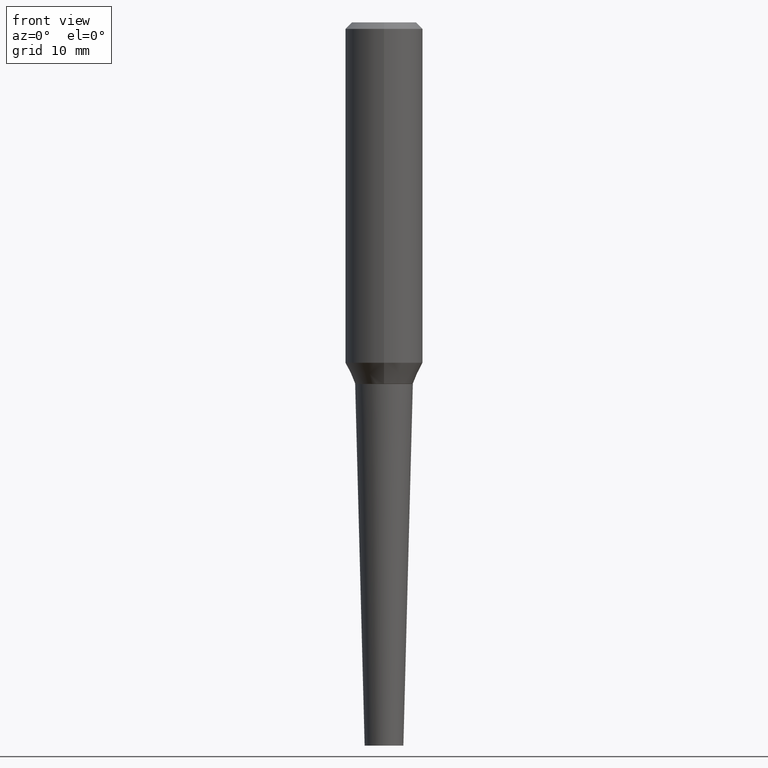
[diagram: clean part render]
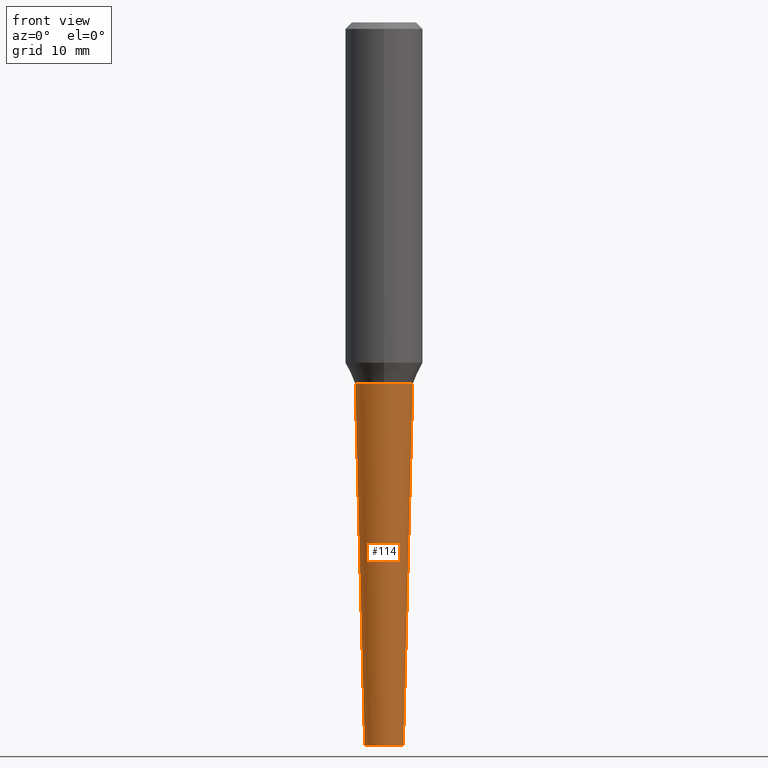
[diagram: same view with one face highlighted and labeled with its STEP entity id]
A machine part, front view. The second image highlights one B-rep face of the part: STEP entity #114.
In plain terms, the highlighted conical surface has half-angle 1.5 deg.
Its self-contained STEP definition (entity closure, byte-faithful):
#19 = CARTESIAN_POINT ( 'NONE',  ( -0.1395753627460647461, -5.118349742072530161E-15, -1.750000000000000000 ) ) ;
#25 = FACE_OUTER_BOUND ( 'NONE', #305, .T. ) ;
#33 = DIRECTION ( 'NONE',  ( 1.000000000000000000, -6.982962677686257244E-15, 0.000000000000000000 ) ) ;
#34 = VERTEX_POINT ( 'NONE', #19 ) ;
#38 = DIRECTION ( 'NONE',  ( 1.000000000000000000, -6.982962677686264344E-15, 0.000000000000000000 ) ) ;
#59 = CARTESIAN_POINT ( 'NONE',  ( 8.559140821647976968E-29, -1.222018468595100934E-14, -3.500000000000000000 ) ) ;
#72 = EDGE_CURVE ( 'NONE', #265, #108, #157, .T. ) ;
#73 = EDGE_CURVE ( 'NONE', #301, #265, #151, .T. ) ;
#74 = AXIS2_PLACEMENT_3D ( 'NONE', #59, #403, #244 ) ;
#77 = ORIENTED_EDGE ( 'NONE', *, *, #73, .T. ) ;
#80 = AXIS2_PLACEMENT_3D ( 'NONE', #285, #241, #33 ) ;
#106 = ORIENTED_EDGE ( 'NONE', *, *, #291, .F. ) ;
#108 = VERTEX_POINT ( 'NONE', #312 ) ;
#113 = ORIENTED_EDGE ( 'NONE', *, *, #72, .T. ) ;
#114 = ADVANCED_FACE ( 'NONE', ( #25 ), #324, .T. ) ;
#151 = CIRCLE ( 'NONE', #74, 0.09375000000000006939 ) ;
#157 = LINE ( 'NONE', #310, #203 ) ;
#165 = CIRCLE ( 'NONE', #398, 0.1395753627460647461 ) ;
#192 = DIRECTION ( 'NONE',  ( -2.445468806185136597E-29, 3.491481338843145583E-15, 1.000000000000000000 ) ) ;
#193 = EDGE_CURVE ( 'NONE', #301, #34, #319, .T. ) ;
#195 = DIRECTION ( 'NONE',  ( -0.02617694830786604712, 3.676283300035236100E-15, 0.9996573249755573709 ) ) ;
#203 = VECTOR ( 'NONE', #317, 39.37007874015748143 ) ;
#237 = VECTOR ( 'NONE', #195, 39.37007874015748143 ) ;
#241 = DIRECTION ( 'NONE',  ( -2.445468806185136597E-29, 3.491481338843145583E-15, 1.000000000000000000 ) ) ;
#244 = DIRECTION ( 'NONE',  ( 1.000000000000000000, -6.982962677686257244E-15, 0.000000000000000000 ) ) ;
#265 = VERTEX_POINT ( 'NONE', #296 ) ;
#285 = CARTESIAN_POINT ( 'NONE',  ( 8.559140821647976968E-29, -1.222018468595100934E-14, -3.500000000000000000 ) ) ;
#291 = EDGE_CURVE ( 'NONE', #34, #108, #165, .T. ) ;
#296 = CARTESIAN_POINT ( 'NONE',  ( 0.09375000000000006939, -1.287483743698409606E-14, -3.500000000000000000 ) ) ;
#301 = VERTEX_POINT ( 'NONE', #326 ) ;
#305 = EDGE_LOOP ( 'NONE', ( #329, #77, #113, #106 ) ) ;
#310 = CARTESIAN_POINT ( 'NONE',  ( 0.09375000000000006939, -1.287483743698409606E-14, -3.500000000000000000 ) ) ;
#312 = CARTESIAN_POINT ( 'NONE',  ( 0.1395753627460647461, -7.084741891755795010E-15, -1.750000000000000000 ) ) ;
#317 = DIRECTION ( 'NONE',  ( 0.02617694830786604712, 3.307492242340466312E-15, 0.9996573249755573709 ) ) ;
#318 = CARTESIAN_POINT ( 'NONE',  ( 4.279570410823988484E-29, -6.110092342975504671E-15, -1.750000000000000000 ) ) ;
#319 = LINE ( 'NONE', #354, #237 ) ;
#324 = CONICAL_SURFACE ( 'NONE', #80, 0.09375000000000006939, 0.02617993877990783605 ) ;
#326 = CARTESIAN_POINT ( 'NONE',  ( -0.09375000000000006939, -8.336200306624222789E-15, -3.500000000000000000 ) ) ;
#329 = ORIENTED_EDGE ( 'NONE', *, *, #193, .F. ) ;
#354 = CARTESIAN_POINT ( 'NONE',  ( -0.09375000000000006939, -1.155405087117591384E-14, -3.500000000000000000 ) ) ;
#398 = AXIS2_PLACEMENT_3D ( 'NONE', #318, #192, #38 ) ;
#403 = DIRECTION ( 'NONE',  ( -2.445468806185136597E-29, 3.491481338843145583E-15, 1.000000000000000000 ) ) ;